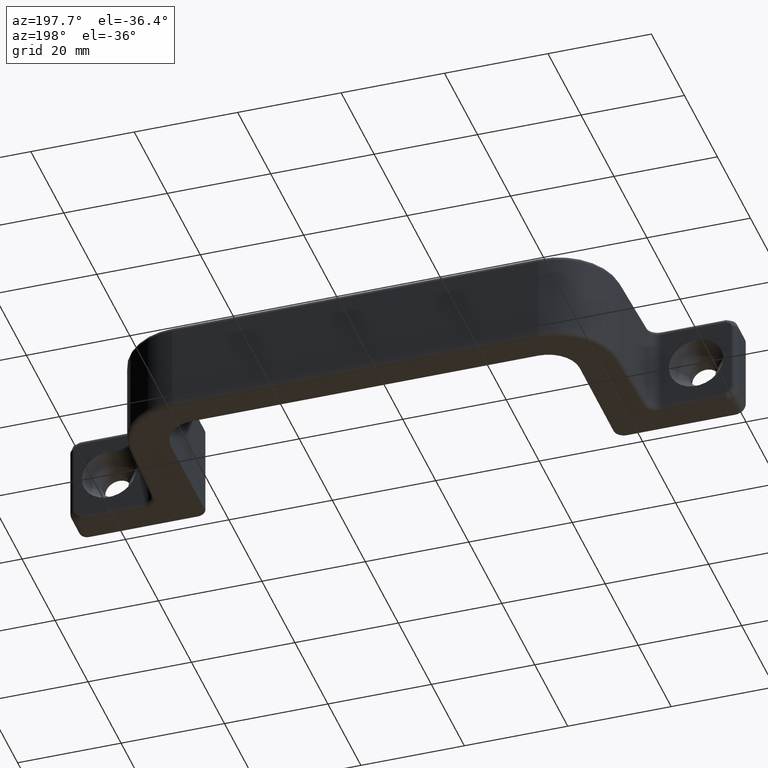
[diagram: clean part render]
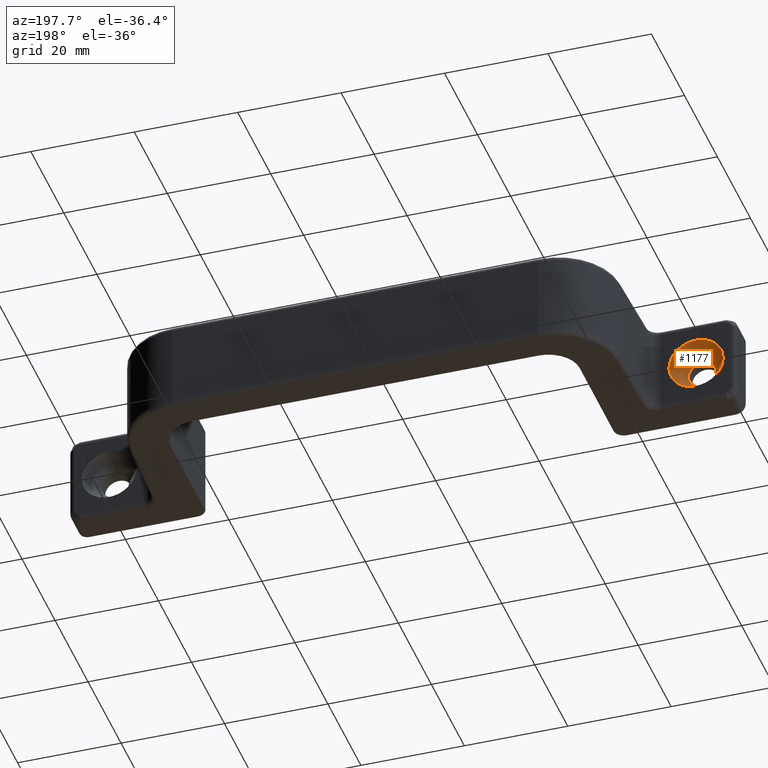
[diagram: same view with one face highlighted and labeled with its STEP entity id]
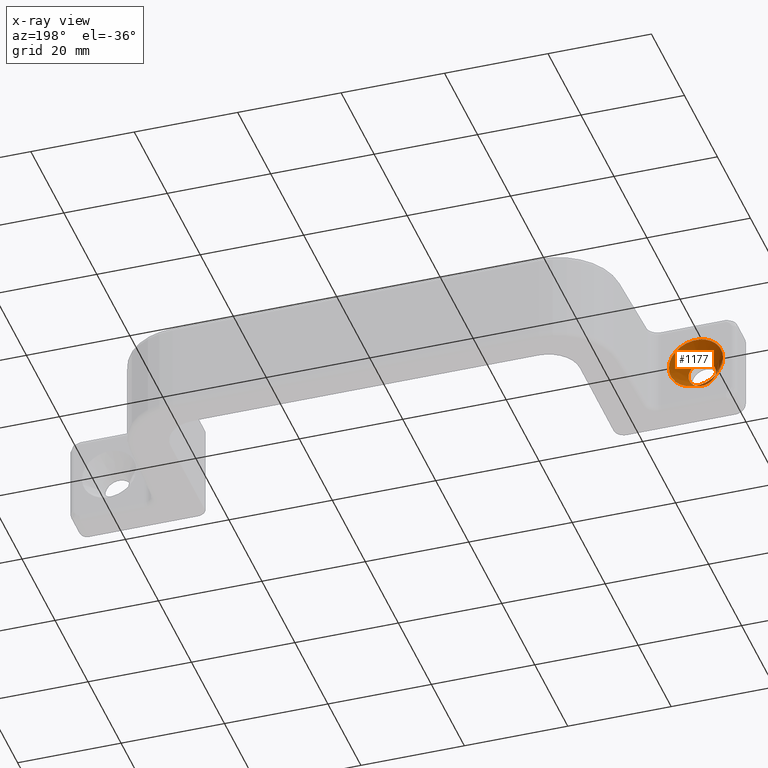
[diagram: x-ray of the same camera — body ghosted, the highlighted face saturated]
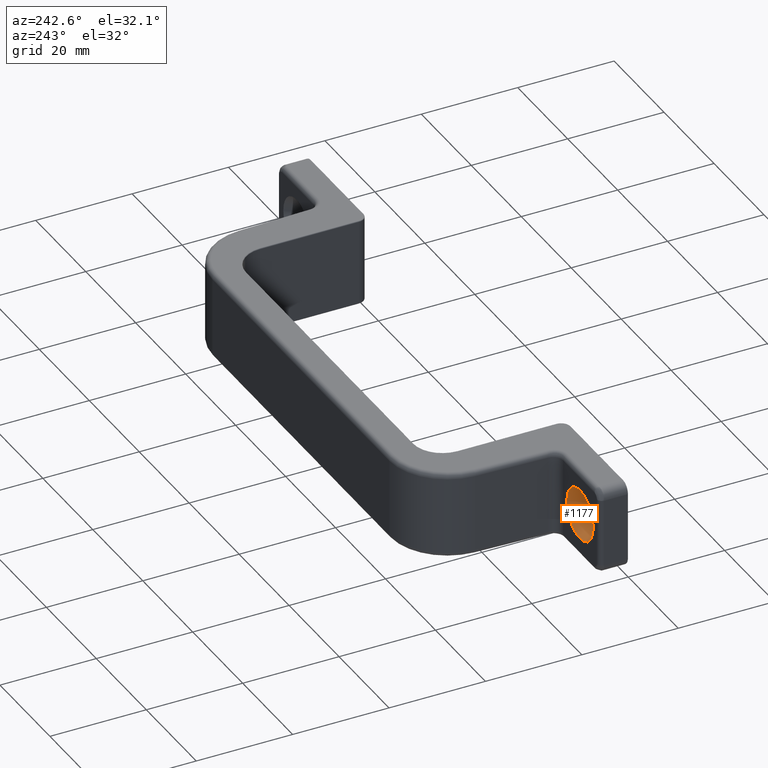
[diagram: same view with one face highlighted and labeled with its STEP entity id]
A machine part, auxiliary view. The second image highlights one B-rep face of the part: STEP entity #1177.
The next image is the same camera in x-ray: the body ghosted, the highlighted face saturated — about 0% of this face is hidden behind the body in this view.
A second angle (auxiliary view) of the same face is appended — the face is thin or edge-on in the first view.
In plain terms, the highlighted conical surface has half-angle 35 deg.
Its self-contained STEP definition (entity closure, byte-faithful):
#20=CONICAL_SURFACE('',#1322,3.95,35.);
#26=FACE_BOUND('',#351,.T.);
#267=FACE_OUTER_BOUND('',#350,.T.);
#350=EDGE_LOOP('',(#956));
#351=EDGE_LOOP('',(#957));
#456=CIRCLE('',#1323,5.25);
#457=CIRCLE('',#1324,2.65);
#564=VERTEX_POINT('',#2062);
#565=VERTEX_POINT('',#2064);
#705=EDGE_CURVE('',#564,#564,#456,.T.);
#706=EDGE_CURVE('',#565,#565,#457,.T.);
#956=ORIENTED_EDGE('',*,*,#705,.F.);
#957=ORIENTED_EDGE('',*,*,#706,.F.);
#1177=ADVANCED_FACE('',(#267,#26),#20,.F.);
#1322=AXIS2_PLACEMENT_3D('',#2061,#1652,#1653);
#1323=AXIS2_PLACEMENT_3D('',#2063,#1654,#1655);
#1324=AXIS2_PLACEMENT_3D('',#2065,#1656,#1657);
#1652=DIRECTION('center_axis',(-6.72862439166762E-17,1.,0.));
#1653=DIRECTION('ref_axis',(1.,6.72862439166762E-17,0.));
#1654=DIRECTION('center_axis',(6.72862439166762E-17,-1.,0.));
#1655=DIRECTION('ref_axis',(1.,6.72862439166761E-17,0.));
#1656=DIRECTION('center_axis',(-6.72862439166762E-17,1.,0.));
#1657=DIRECTION('ref_axis',(1.,6.72862439166762E-17,0.));
#2061=CARTESIAN_POINT('Origin',(7.75,4.14340759123525,0.));
#2062=CARTESIAN_POINT('',(13.,6.,0.));
#2063=CARTESIAN_POINT('Origin',(7.75,6.,0.));
#2064=CARTESIAN_POINT('',(10.4,2.2868151824705,0.));
#2065=CARTESIAN_POINT('Origin',(7.75,2.2868151824705,0.));